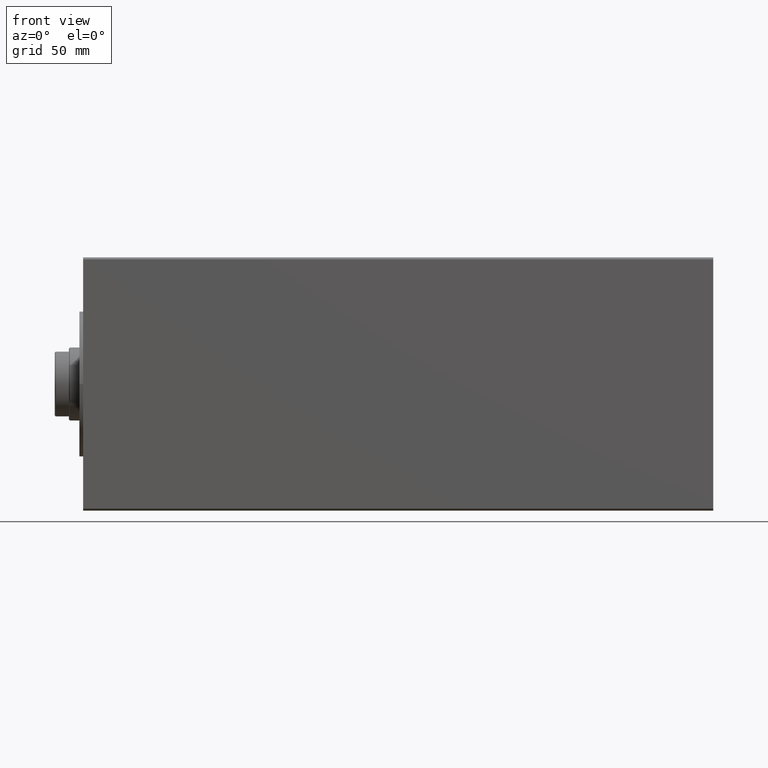
[diagram: clean part render]
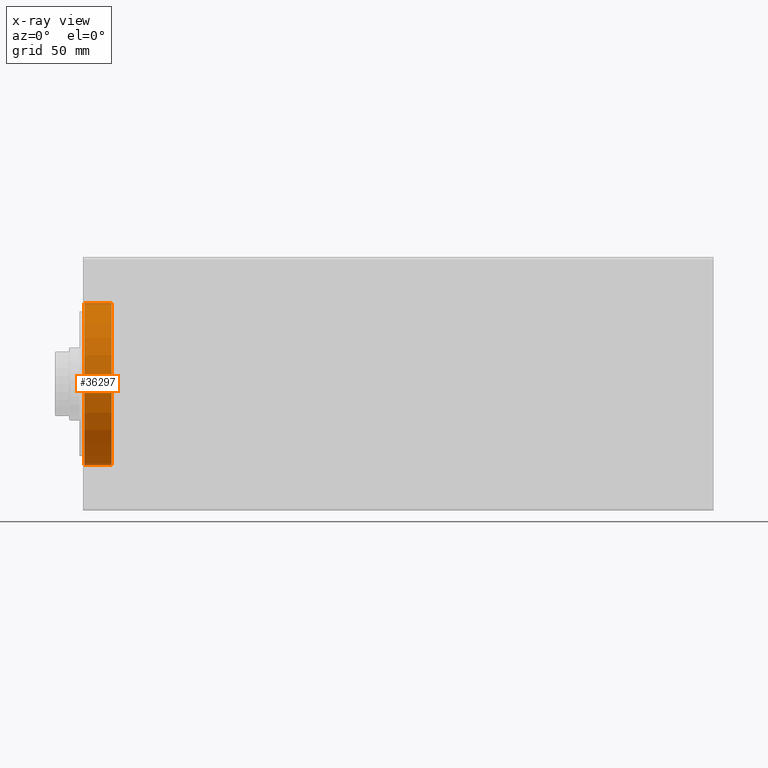
[diagram: x-ray — body ghosted, one internal face saturated and labeled with its STEP entity id]
A machine part, front view, then the same camera in x-ray: the body is ghosted and one INTERNAL B-rep face — a face not visible from any outside direction — is saturated and labeled: STEP entity #36297.
In plain terms, the highlighted cylindrical surface (partial cylindrical patch) has radius 40 mm, axis along (-1, -0, -0).
Its self-contained STEP definition (entity closure, byte-faithful):
#1116 = CARTESIAN_POINT ( 'NONE',  ( 14.00000000000000000, 0.000000000000000000, 40.00000000000000000 ) ) ;
#2177 = AXIS2_PLACEMENT_3D ( 'NONE', #9968, #29743, #9516 ) ;
#2235 = VECTOR ( 'NONE', #12010, 1000.000000000000000 ) ;
#2449 = DIRECTION ( 'NONE',  ( -1.000000000000000000, 0.000000000000000000, 0.000000000000000000 ) ) ;
#3499 = ORIENTED_EDGE ( 'NONE', *, *, #24426, .T. ) ;
#7150 = EDGE_CURVE ( 'NONE', #27585, #23036, #24772, .T. ) ;
#8900 = LINE ( 'NONE', #21811, #2235 ) ;
#9516 = DIRECTION ( 'NONE',  ( 0.000000000000000000, 0.000000000000000000, 1.000000000000000000 ) ) ;
#9968 = CARTESIAN_POINT ( 'NONE',  ( 14.00000000000000000, 0.000000000000000000, 0.000000000000000000 ) ) ;
#10002 = AXIS2_PLACEMENT_3D ( 'NONE', #43814, #2449, #43371 ) ;
#11410 = CIRCLE ( 'NONE', #2177, 40.00000000000000000 ) ;
#11433 = CARTESIAN_POINT ( 'NONE',  ( 14.00000000000000000, 0.000000000000000000, 40.00000000000000000 ) ) ;
#12010 = DIRECTION ( 'NONE',  ( -1.000000000000000000, -0.000000000000000000, -0.000000000000000000 ) ) ;
#12277 = ORIENTED_EDGE ( 'NONE', *, *, #21928, .T. ) ;
#12869 = VERTEX_POINT ( 'NONE', #22793 ) ;
#13204 = VECTOR ( 'NONE', #28317, 1000.000000000000000 ) ;
#16250 = VERTEX_POINT ( 'NONE', #36736 ) ;
#17701 = EDGE_CURVE ( 'NONE', #16250, #27585, #11410, .T. ) ;
#18222 = ORIENTED_EDGE ( 'NONE', *, *, #17701, .F. ) ;
#18868 = DIRECTION ( 'NONE',  ( -1.000000000000000000, -0.000000000000000000, -0.000000000000000000 ) ) ;
#19735 = CYLINDRICAL_SURFACE ( 'NONE', #29479, 40.00000000000000000 ) ;
#21811 = CARTESIAN_POINT ( 'NONE',  ( 14.00000000000000000, 4.898587196589413026E-15, -40.00000000000000000 ) ) ;
#21928 = EDGE_CURVE ( 'NONE', #12869, #23036, #38354, .T. ) ;
#22793 = CARTESIAN_POINT ( 'NONE',  ( 0.7000000000000408118, 4.898587196589413026E-15, -40.00000000000000000 ) ) ;
#23036 = VERTEX_POINT ( 'NONE', #41514 ) ;
#23064 = FACE_OUTER_BOUND ( 'NONE', #34169, .T. ) ;
#24426 = EDGE_CURVE ( 'NONE', #16250, #12869, #8900, .T. ) ;
#24772 = LINE ( 'NONE', #11433, #13204 ) ;
#25754 = CARTESIAN_POINT ( 'NONE',  ( 14.00000000000000000, 0.000000000000000000, 0.000000000000000000 ) ) ;
#27585 = VERTEX_POINT ( 'NONE', #1116 ) ;
#28317 = DIRECTION ( 'NONE',  ( -1.000000000000000000, -0.000000000000000000, -0.000000000000000000 ) ) ;
#29479 = AXIS2_PLACEMENT_3D ( 'NONE', #25754, #18868, #39315 ) ;
#29743 = DIRECTION ( 'NONE',  ( -1.000000000000000000, 0.000000000000000000, 0.000000000000000000 ) ) ;
#34169 = EDGE_LOOP ( 'NONE', ( #18222, #3499, #12277, #41597 ) ) ;
#36297 = ADVANCED_FACE ( 'NONE', ( #23064 ), #19735, .F. ) ;
#36736 = CARTESIAN_POINT ( 'NONE',  ( 14.00000000000000000, 4.898587196589413026E-15, -40.00000000000000000 ) ) ;
#38354 = CIRCLE ( 'NONE', #10002, 40.00000000000000000 ) ;
#39315 = DIRECTION ( 'NONE',  ( 0.000000000000000000, 0.000000000000000000, 1.000000000000000000 ) ) ;
#41514 = CARTESIAN_POINT ( 'NONE',  ( 0.7000000000000408118, 0.000000000000000000, 40.00000000000000000 ) ) ;
#41597 = ORIENTED_EDGE ( 'NONE', *, *, #7150, .F. ) ;
#43371 = DIRECTION ( 'NONE',  ( 0.000000000000000000, 0.000000000000000000, -1.000000000000000000 ) ) ;
#43814 = CARTESIAN_POINT ( 'NONE',  ( 0.7000000000000408118, 0.000000000000000000, 0.000000000000000000 ) ) ;